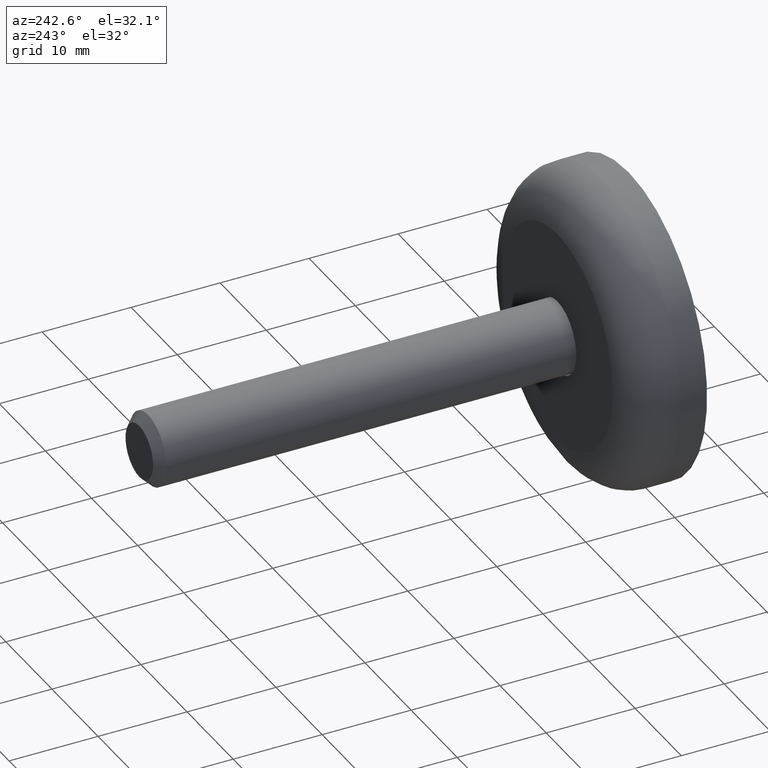
[diagram: clean part render]
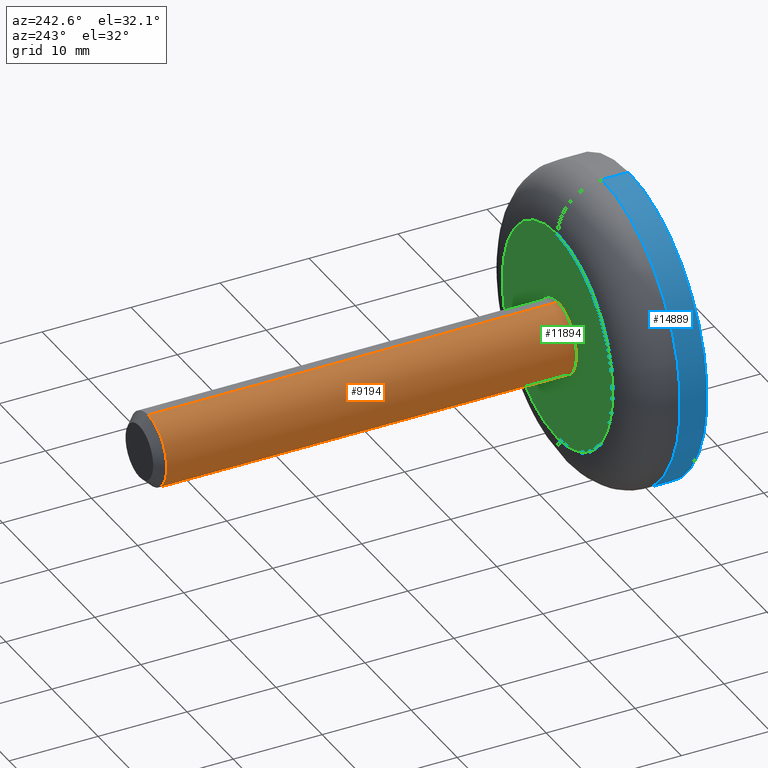
[diagram: same view with three faces highlighted in distinct colors, each labeled with its STEP entity id]
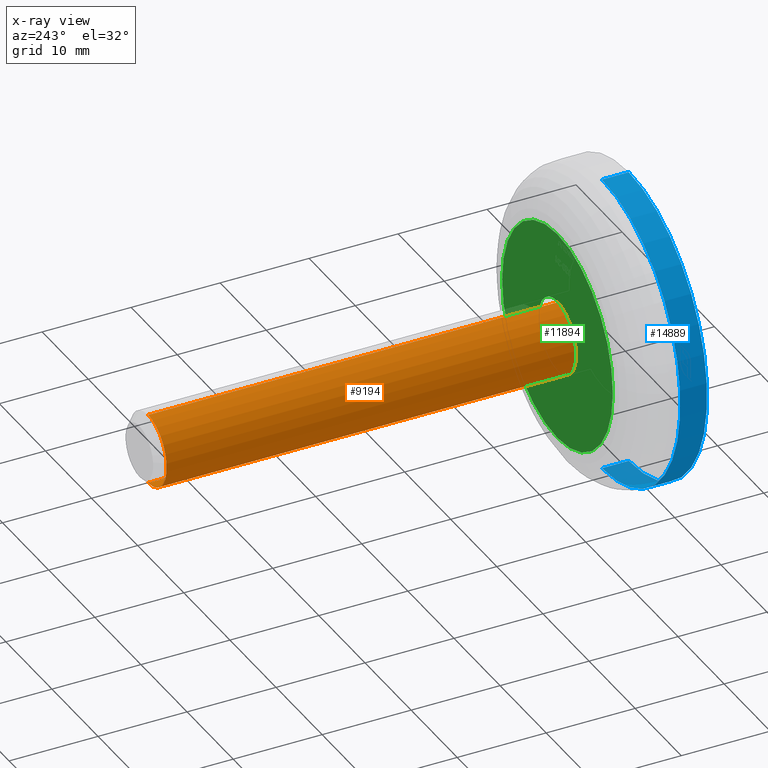
[diagram: x-ray of the same camera — body ghosted, the three highlighted faces saturated]
A machine part, auxiliary view with three faces highlighted in distinct colors.
The next image is the same camera in x-ray (body ghosted, the three faces saturated) — at least one of them is partly hidden behind the body in this view.
Their STEP definitions:

[orange] entity #9194 — the highlighted cylindrical surface (partial cylindrical patch) has radius 4 mm, axis along (-0, -1, -0).
#333 = CARTESIAN_POINT ( 'NONE',  ( 0.000000000000000000, 4.999999999999997335, 0.000000000000000000 ) ) ;
#1297 = VERTEX_POINT ( 'NONE', #11743 ) ;
#1424 = ORIENTED_EDGE ( 'NONE', *, *, #12419, .T. ) ;
#1542 = DIRECTION ( 'NONE',  ( -0.000000000000000000, -1.000000000000000000, -0.000000000000000000 ) ) ;
#2335 = CIRCLE ( 'NONE', #4402, 4.000000000000003553 ) ;
#2889 = CARTESIAN_POINT ( 'NONE',  ( 0.000000000000000000, 53.99999999999999289, -4.000000000000003553 ) ) ;
#2942 = DIRECTION ( 'NONE',  ( 0.000000000000000000, 0.000000000000000000, -1.000000000000000000 ) ) ;
#2970 = VERTEX_POINT ( 'NONE', #2889 ) ;
#3205 = LINE ( 'NONE', #6235, #8336 ) ;
#3282 = CARTESIAN_POINT ( 'NONE',  ( 0.000000000000000000, 53.99999999999999289, 0.000000000000000000 ) ) ;
#3641 = DIRECTION ( 'NONE',  ( -0.000000000000000000, -1.000000000000000000, -0.000000000000000000 ) ) ;
#3701 = EDGE_CURVE ( 'NONE', #2970, #10252, #3205, .T. ) ;
#4116 = VERTEX_POINT ( 'NONE', #5815 ) ;
#4391 = DIRECTION ( 'NONE',  ( 0.000000000000000000, 0.000000000000000000, 1.000000000000000000 ) ) ;
#4402 = AXIS2_PLACEMENT_3D ( 'NONE', #3282, #15265, #4391 ) ;
#4954 = CIRCLE ( 'NONE', #9182, 4.000000000000006217 ) ;
#5218 = CARTESIAN_POINT ( 'NONE',  ( 0.000000000000000000, 0.000000000000000000, 0.000000000000000000 ) ) ;
#5815 = CARTESIAN_POINT ( 'NONE',  ( 4.898587196589420717E-16, 4.999999999999997335, 4.000000000000006217 ) ) ;
#5862 = EDGE_LOOP ( 'NONE', ( #14578, #1424, #7611, #10916 ) ) ;
#6235 = CARTESIAN_POINT ( 'NONE',  ( 0.000000000000000000, 0.000000000000000000, -4.000000000000003553 ) ) ;
#6419 = DIRECTION ( 'NONE',  ( 0.000000000000000000, 0.000000000000000000, -1.000000000000000000 ) ) ;
#6763 = VECTOR ( 'NONE', #10924, 1000.000000000000000 ) ;
#7611 = ORIENTED_EDGE ( 'NONE', *, *, #3701, .T. ) ;
#7838 = EDGE_CURVE ( 'NONE', #1297, #4116, #8291, .T. ) ;
#8291 = LINE ( 'NONE', #15623, #6763 ) ;
#8336 = VECTOR ( 'NONE', #3641, 1000.000000000000000 ) ;
#9182 = AXIS2_PLACEMENT_3D ( 'NONE', #333, #1542, #6419 ) ;
#9194 = ADVANCED_FACE ( 'NONE', ( #14506 ), #15243, .T. ) ;
#10252 = VERTEX_POINT ( 'NONE', #12896 ) ;
#10916 = ORIENTED_EDGE ( 'NONE', *, *, #14332, .F. ) ;
#10924 = DIRECTION ( 'NONE',  ( -0.000000000000000000, -1.000000000000000000, -0.000000000000000000 ) ) ;
#11474 = AXIS2_PLACEMENT_3D ( 'NONE', #5218, #12822, #2942 ) ;
#11743 = CARTESIAN_POINT ( 'NONE',  ( 4.898587196589417759E-16, 53.99999999999999289, 4.000000000000003553 ) ) ;
#12419 = EDGE_CURVE ( 'NONE', #1297, #2970, #2335, .T. ) ;
#12822 = DIRECTION ( 'NONE',  ( -0.000000000000000000, -1.000000000000000000, -0.000000000000000000 ) ) ;
#12896 = CARTESIAN_POINT ( 'NONE',  ( 0.000000000000000000, 4.999999999999997335, -4.000000000000006217 ) ) ;
#14332 = EDGE_CURVE ( 'NONE', #4116, #10252, #4954, .T. ) ;
#14506 = FACE_OUTER_BOUND ( 'NONE', #5862, .T. ) ;
#14578 = ORIENTED_EDGE ( 'NONE', *, *, #7838, .F. ) ;
#15243 = CYLINDRICAL_SURFACE ( 'NONE', #11474, 4.000000000000003553 ) ;
#15265 = DIRECTION ( 'NONE',  ( -0.000000000000000000, -1.000000000000000000, -0.000000000000000000 ) ) ;
#15623 = CARTESIAN_POINT ( 'NONE',  ( 4.898587196589417759E-16, 0.000000000000000000, 4.000000000000003553 ) ) ;

[blue] entity #14889 — the highlighted cylindrical surface (partial cylindrical patch) has radius 17 mm, axis along (-0, -1, -0).
#954 = AXIS2_PLACEMENT_3D ( 'NONE', #15627, #10823, #9521 ) ;
#1126 = DIRECTION ( 'NONE',  ( -0.000000000000000000, -1.000000000000000000, -0.000000000000000000 ) ) ;
#1175 = DIRECTION ( 'NONE',  ( 0.000000000000000000, 0.000000000000000000, -1.000000000000000000 ) ) ;
#1963 = LINE ( 'NONE', #4006, #4830 ) ;
#2775 = CARTESIAN_POINT ( 'NONE',  ( 0.000000000000000000, 1.836970198721010336E-17, -17.00000000000000000 ) ) ;
#2805 = EDGE_CURVE ( 'NONE', #13102, #5232, #3289, .T. ) ;
#3244 = CIRCLE ( 'NONE', #7856, 17.00000000000000000 ) ;
#3289 = LINE ( 'NONE', #13224, #7265 ) ;
#3412 = DIRECTION ( 'NONE',  ( -0.000000000000000000, -1.000000000000000000, -0.000000000000000000 ) ) ;
#4006 = CARTESIAN_POINT ( 'NONE',  ( 2.081899558550500280E-15, 0.000000000000000000, 17.00000000000000000 ) ) ;
#4526 = DIRECTION ( 'NONE',  ( 0.000000000000000000, 0.000000000000000000, 1.000000000000000000 ) ) ;
#4578 = CARTESIAN_POINT ( 'NONE',  ( 0.000000000000000000, 2.999999999999998224, 0.000000000000000000 ) ) ;
#4830 = VECTOR ( 'NONE', #12243, 1000.000000000000000 ) ;
#4844 = ORIENTED_EDGE ( 'NONE', *, *, #14192, .F. ) ;
#5232 = VERTEX_POINT ( 'NONE', #2775 ) ;
#5693 = CYLINDRICAL_SURFACE ( 'NONE', #954, 17.00000000000000000 ) ;
#5706 = AXIS2_PLACEMENT_3D ( 'NONE', #4578, #3412, #4526 ) ;
#6190 = CIRCLE ( 'NONE', #5706, 17.00000000000000000 ) ;
#7265 = VECTOR ( 'NONE', #1126, 1000.000000000000000 ) ;
#7648 = ORIENTED_EDGE ( 'NONE', *, *, #10568, .F. ) ;
#7856 = AXIS2_PLACEMENT_3D ( 'NONE', #8441, #12013, #1175 ) ;
#8026 = EDGE_CURVE ( 'NONE', #11889, #13102, #6190, .T. ) ;
#8441 = CARTESIAN_POINT ( 'NONE',  ( 0.000000000000000000, 1.836970198721010336E-17, 0.000000000000000000 ) ) ;
#8807 = CARTESIAN_POINT ( 'NONE',  ( 0.000000000000000000, 2.999999999999998224, -17.00000000000000000 ) ) ;
#9096 = EDGE_LOOP ( 'NONE', ( #7648, #10990, #10529, #4844 ) ) ;
#9335 = VERTEX_POINT ( 'NONE', #11755 ) ;
#9521 = DIRECTION ( 'NONE',  ( 0.000000000000000000, 0.000000000000000000, -1.000000000000000000 ) ) ;
#10529 = ORIENTED_EDGE ( 'NONE', *, *, #2805, .T. ) ;
#10568 = EDGE_CURVE ( 'NONE', #11889, #9335, #1963, .T. ) ;
#10823 = DIRECTION ( 'NONE',  ( -0.000000000000000000, -1.000000000000000000, -0.000000000000000000 ) ) ;
#10990 = ORIENTED_EDGE ( 'NONE', *, *, #8026, .T. ) ;
#11755 = CARTESIAN_POINT ( 'NONE',  ( 2.081899558550500280E-15, 1.836970198721010336E-17, 17.00000000000000000 ) ) ;
#11889 = VERTEX_POINT ( 'NONE', #14144 ) ;
#12013 = DIRECTION ( 'NONE',  ( -0.000000000000000000, -1.000000000000000000, -0.000000000000000000 ) ) ;
#12243 = DIRECTION ( 'NONE',  ( -0.000000000000000000, -1.000000000000000000, -0.000000000000000000 ) ) ;
#13102 = VERTEX_POINT ( 'NONE', #8807 ) ;
#13224 = CARTESIAN_POINT ( 'NONE',  ( 0.000000000000000000, 0.000000000000000000, -17.00000000000000000 ) ) ;
#14144 = CARTESIAN_POINT ( 'NONE',  ( 2.081899558550500280E-15, 2.999999999999998224, 17.00000000000000000 ) ) ;
#14192 = EDGE_CURVE ( 'NONE', #9335, #5232, #3244, .T. ) ;
#14402 = FACE_OUTER_BOUND ( 'NONE', #9096, .T. ) ;
#14889 = ADVANCED_FACE ( 'NONE', ( #14402 ), #5693, .T. ) ;
#15627 = CARTESIAN_POINT ( 'NONE',  ( 0.000000000000000000, 0.000000000000000000, 0.000000000000000000 ) ) ;

[green] entity #11894 — the highlighted planar face has unit normal (0, 1, 0).
#36 = CARTESIAN_POINT ( 'NONE',  ( 0.000000000000000000, 7.999999999999998224, 0.000000000000000000 ) ) ;
#69 = DIRECTION ( 'NONE',  ( 0.000000000000000000, 0.000000000000000000, 1.000000000000000000 ) ) ;
#306 = AXIS2_PLACEMENT_3D ( 'NONE', #805, #5697, #6749 ) ;
#418 = ORIENTED_EDGE ( 'NONE', *, *, #6080, .T. ) ;
#805 = CARTESIAN_POINT ( 'NONE',  ( 0.000000000000000000, 7.999999999999998224, 0.000000000000000000 ) ) ;
#1706 = EDGE_CURVE ( 'NONE', #12806, #11741, #11250, .T. ) ;
#1950 = AXIS2_PLACEMENT_3D ( 'NONE', #12753, #4354, #11526 ) ;
#3770 = CARTESIAN_POINT ( 'NONE',  ( 0.000000000000000000, 7.999999999999998224, 0.000000000000000000 ) ) ;
#3856 = FACE_OUTER_BOUND ( 'NONE', #13482, .T. ) ;
#4029 = CARTESIAN_POINT ( 'NONE',  ( 0.000000000000000000, 7.999999999999998224, 12.00000000000000000 ) ) ;
#4354 = DIRECTION ( 'NONE',  ( 0.000000000000000000, 1.000000000000000000, 0.000000000000000000 ) ) ;
#4784 = DIRECTION ( 'NONE',  ( -0.000000000000000000, -1.000000000000000000, -0.000000000000000000 ) ) ;
#4924 = VERTEX_POINT ( 'NONE', #4029 ) ;
#5159 = EDGE_CURVE ( 'NONE', #4924, #10227, #12444, .T. ) ;
#5446 = CIRCLE ( 'NONE', #14210, 12.00000000000000000 ) ;
#5519 = EDGE_LOOP ( 'NONE', ( #12112, #10101 ) ) ;
#5697 = DIRECTION ( 'NONE',  ( -0.000000000000000000, -1.000000000000000000, -0.000000000000000000 ) ) ;
#6004 = CARTESIAN_POINT ( 'NONE',  ( 0.000000000000000000, 7.999999999999998224, -4.100000000000006750 ) ) ;
#6080 = EDGE_CURVE ( 'NONE', #10227, #4924, #5446, .T. ) ;
#6119 = FACE_BOUND ( 'NONE', #5519, .T. ) ;
#6515 = AXIS2_PLACEMENT_3D ( 'NONE', #12009, #4784, #9654 ) ;
#6749 = DIRECTION ( 'NONE',  ( 0.000000000000000000, 0.000000000000000000, -1.000000000000000000 ) ) ;
#7362 = ORIENTED_EDGE ( 'NONE', *, *, #5159, .T. ) ;
#8309 = EDGE_CURVE ( 'NONE', #11741, #12806, #13402, .T. ) ;
#8507 = DIRECTION ( 'NONE',  ( 0.000000000000000000, 1.000000000000000000, 0.000000000000000000 ) ) ;
#8868 = CARTESIAN_POINT ( 'NONE',  ( 5.021051876504156260E-16, 7.999999999999998224, 4.100000000000006750 ) ) ;
#9152 = CARTESIAN_POINT ( 'NONE',  ( 1.775737858763662015E-15, 7.999999999999998224, -12.00000000000000000 ) ) ;
#9330 = PLANE ( 'NONE',  #1950 ) ;
#9654 = DIRECTION ( 'NONE',  ( 0.000000000000000000, 0.000000000000000000, -1.000000000000000000 ) ) ;
#9914 = DIRECTION ( 'NONE',  ( 0.000000000000000000, 1.000000000000000000, 0.000000000000000000 ) ) ;
#10101 = ORIENTED_EDGE ( 'NONE', *, *, #8309, .T. ) ;
#10227 = VERTEX_POINT ( 'NONE', #9152 ) ;
#10976 = DIRECTION ( 'NONE',  ( 0.000000000000000000, 0.000000000000000000, 1.000000000000000000 ) ) ;
#11250 = CIRCLE ( 'NONE', #306, 4.100000000000006750 ) ;
#11526 = DIRECTION ( 'NONE',  ( 0.000000000000000000, -0.000000000000000000, 1.000000000000000000 ) ) ;
#11741 = VERTEX_POINT ( 'NONE', #8868 ) ;
#11894 = ADVANCED_FACE ( 'NONE', ( #3856, #6119 ), #9330, .T. ) ;
#12009 = CARTESIAN_POINT ( 'NONE',  ( 0.000000000000000000, 7.999999999999998224, 0.000000000000000000 ) ) ;
#12112 = ORIENTED_EDGE ( 'NONE', *, *, #1706, .T. ) ;
#12444 = CIRCLE ( 'NONE', #14509, 12.00000000000000000 ) ;
#12753 = CARTESIAN_POINT ( 'NONE',  ( 4.100000000000006750, 7.999999999999998224, 0.000000000000000000 ) ) ;
#12806 = VERTEX_POINT ( 'NONE', #6004 ) ;
#13402 = CIRCLE ( 'NONE', #6515, 4.100000000000006750 ) ;
#13482 = EDGE_LOOP ( 'NONE', ( #7362, #418 ) ) ;
#14210 = AXIS2_PLACEMENT_3D ( 'NONE', #36, #8507, #10976 ) ;
#14509 = AXIS2_PLACEMENT_3D ( 'NONE', #3770, #9914, #69 ) ;